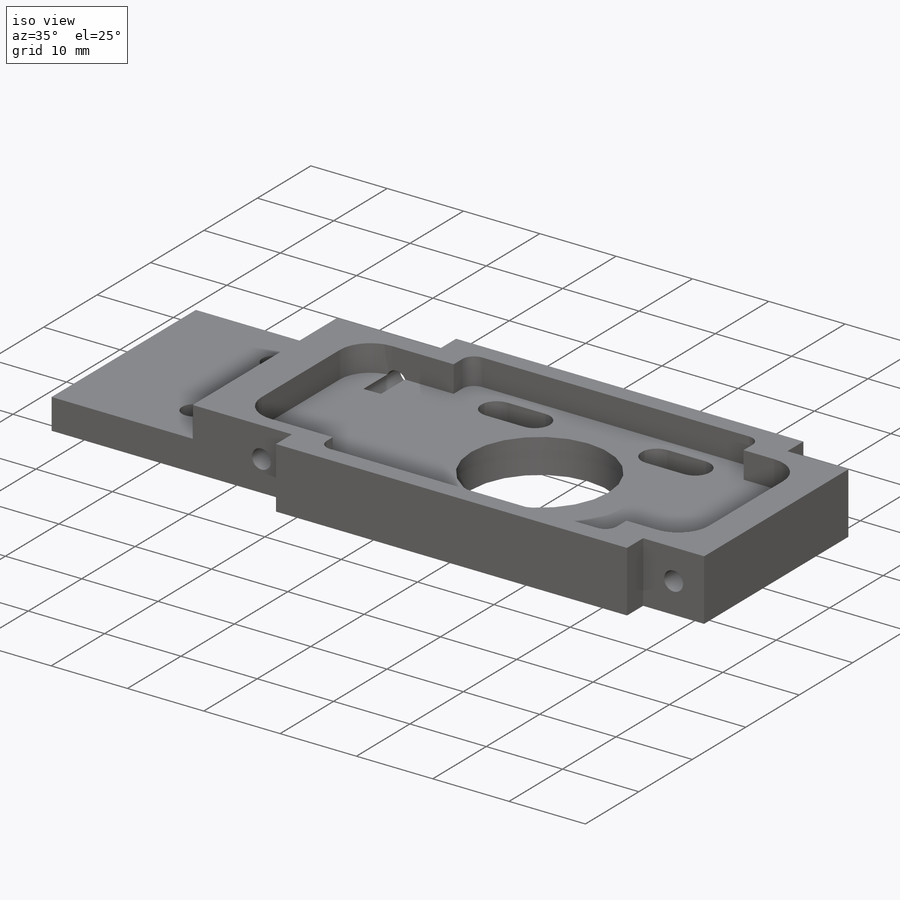
[diagram: iso view]
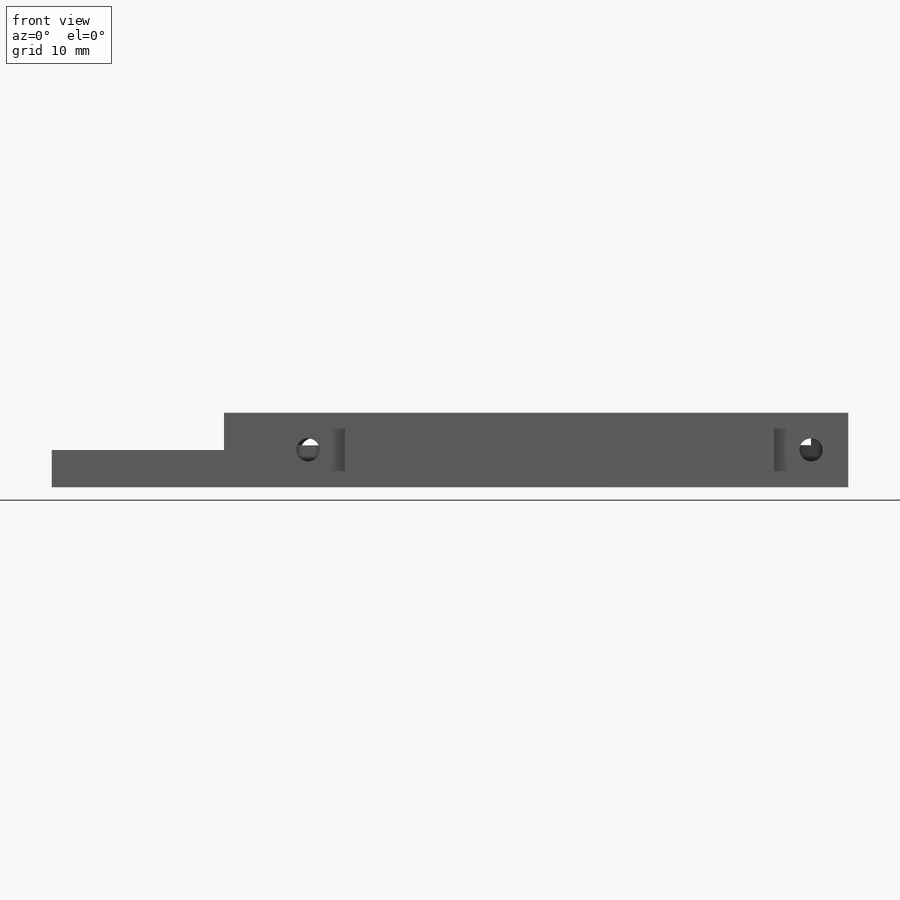
[diagram: front view]
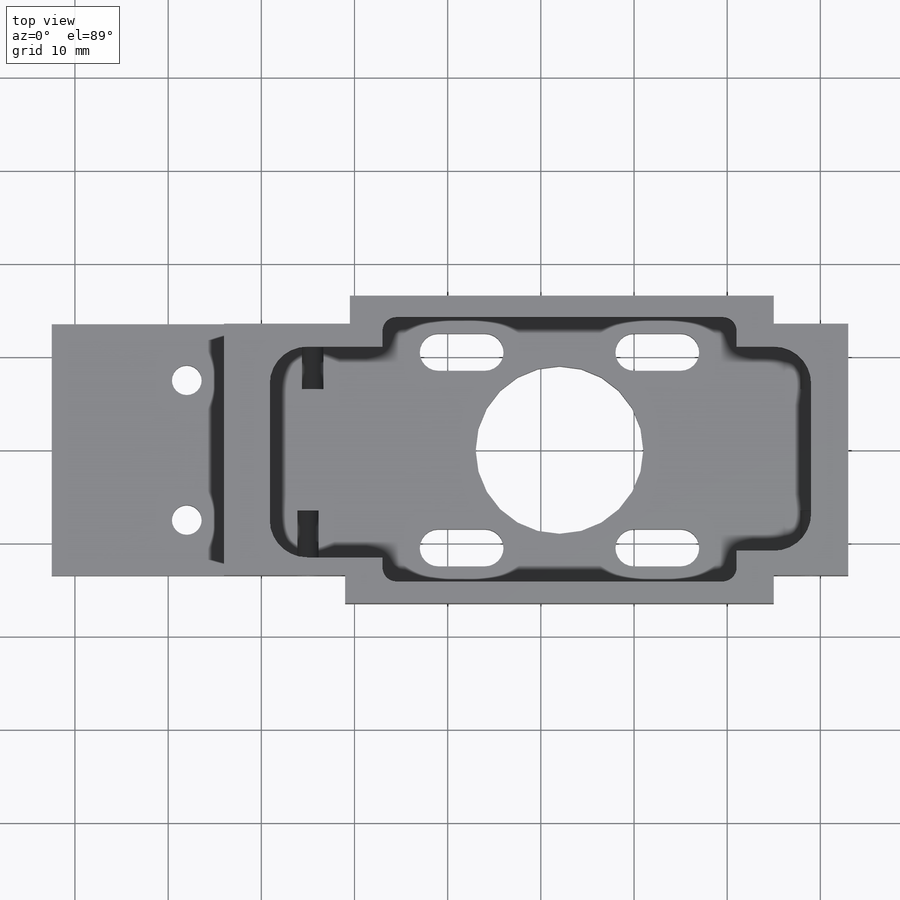
[diagram: top view]
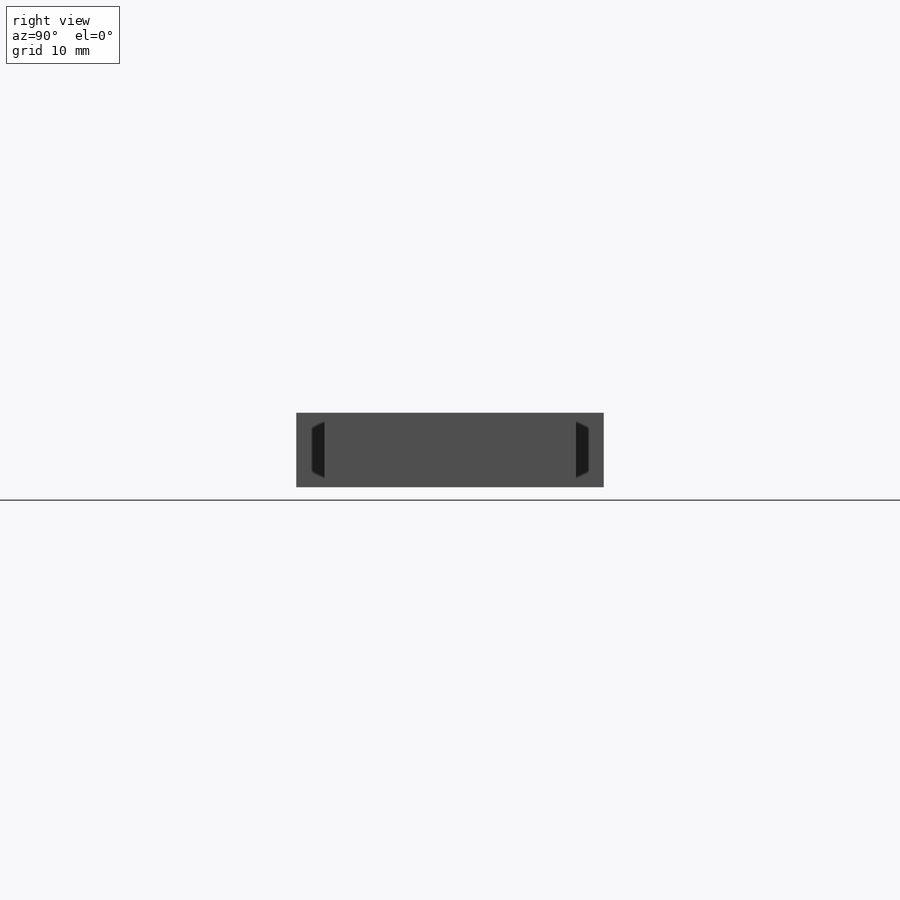
[diagram: right view]
SOLIDWORKS PART (.sldprt)
format: sldprt  version: not decoded by parser v0  size: 452,096 bytes
history: native  units: mm
features: sketch x9, cut_extrude x8, plane x3, material x1, extrude x1 (+10 scaffold rows collapsed)
feature tree (32):
  scaffold x10  (default folders/planes/origin — collapsed)
  material  "Материал <не указан>"
  plane  "Спереди"
  plane  "Сверху"
  plane  "Справа"
  sketch  "Эскиз1"  dims[D1=85.5mm D2=86.0mm D3=27.0mm D4=43.0mm D5=8.0mm D6=46.0mm D7=3.0mm D8=13.5mm]
  extrude  "Бобышка-Вытянуть1"  Depth=8mm
  sketch  "Эскиз2"  dims[D1=18.5mm]
  cut_extrude  "Вырез-Вытянуть1"  Depth=4mm
  sketch  "Эскиз3"  dims[D1=3.2mm D2=4.0mm D3=6.0mm]
  cut_extrude  "Вырез-Вытянуть2"  [1 undecoded]
  sketch  "Эскиз4"  dims[c1.D1=18.0mm c1.D9=2.0mm c2.D1=46.0mm c2.D2=23.0mm c2.D3=10.5mm c2.D4=10.5mm c2.D5=10.5mm c2.D6=10.5mm c2.D7=4.0mm c2.D8=5.0mm c2.D9=8.0mm]
  cut_extrude  "Вырез-Вытянуть3"  [1 undecoded]
  sketch  "Эскиз5"  dims[c1.D9=4.0mm c1.D10=1.5mm c1.D1=3.7mm c1.D2=3.7mm c1.D3=4.0mm c1.D4=4.0mm c2.D1=4.0mm c2.D2=4.0mm c2.D3=2.3mm c2.D4=4.0mm c2.D5=~21.924614mm c2.D6=2.3mm c2.D7=~12.099474mm c2.D8=~22.627736mm c2.D9=~22.627736mm c3.D9=270.0deg]
  cut_extrude  "Вырез-Вытянуть4"  Depth=3.5mm
  sketch  "Эскиз6"  dims[D1=2.5mm D2=4.0mm D3=4.0mm]
  cut_extrude  "Вырез-Вытянуть8"  Depth=7mm
  sketch  "Эскиз7"  dims[D1=2.5mm D2=4.0mm D3=4.0mm]
  cut_extrude  "Вырез-Вытянуть9"  Depth=7mm
  sketch  "Эскиз8"  dims[D1=2.5mm D2=4.0mm D3=4.0mm]
  cut_extrude  "Вырез-Вытянуть10"  Depth=7mm
  sketch  "Эскиз9"  dims[D1=2.5mm D2=4.0mm D3=4.0mm]
  cut_extrude  "Вырез-Вытянуть11"  Depth=7mm
decode coverage: 16 of 18 modeling features carry decoded parameters
note: ~ marks probable driven/reference dimensions
note: 2 parameter values undecoded
note: suppression state not decoded; provenance and decode notes live in map.json
